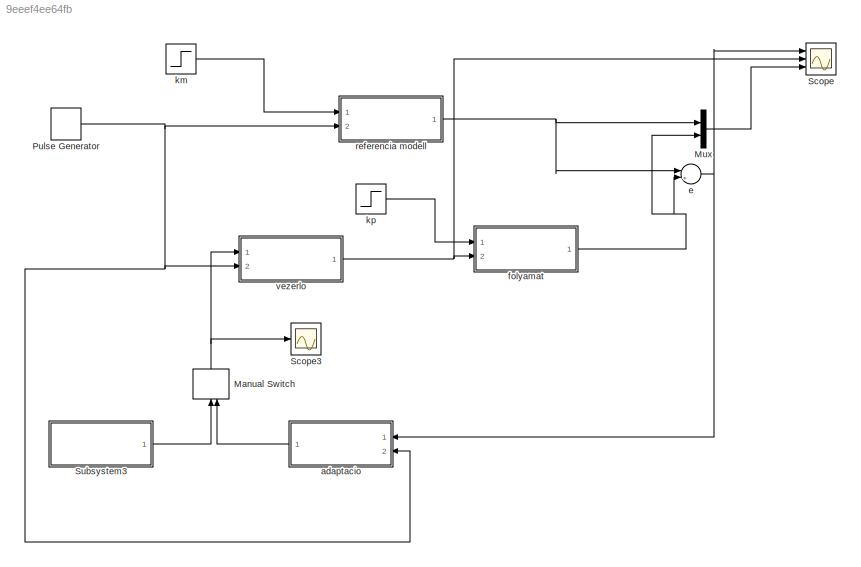
MODEL slx_9eeef4ee64fb
KIND model
CONFIG AbsTol = auto
CONFIG EnableMultiTasking = off
CONFIG FixedStep = auto
CONFIG MaxStep = auto
CONFIG MinStep = auto
CONFIG RelTol = 1e-3
CONFIG SampleTimeConstraint = Unconstrained
CONFIG SolverName = VariableStepAuto
CONFIG StartTime = 0.0
CONFIG StopTime = 20.0
BLOCK [ManualSwitch] Manual Switch
  CurrentSetting = 0
  NameLocation = right
BLOCK [Mux] Mux
  DisplayOption = bar
  Inputs = 2
  Ports = [2, 1]
BLOCK [DiscretePulseGenerator] Pulse Generator
  Amplitude = 5
  Ports = [0, 1]
  PulseType = Time based
  PulseWidth = 50
BLOCK [Scope] Scope
  Floating = off
  NumInputPorts = 3
  Ports = [3]
  ScopeSpecificationString = Simulink.scopes.TimeScopeBlockCfg('CurrentConfiguration', extmgr.ConfigurationSet(extmgr.Configuration('Core','General UI',true),extmgr.Configuration('Core','Source UI',true),extmgr.Configuration('Sources','WiredSimulink',true),extmgr.Configuration('Visuals','Time Domain',true,'SerializedDisplays',{struct('MinYLimReal','-1.00000','MaxYLimReal','1.00000','YLabelReal','','MinYLimMag','0.00000','MaxY...<+2812ch>
BLOCK [Scope] Scope3
  Floating = off
  NumInputPorts = 1
  Ports = [1]
  ScopeSpecificationString = Simulink.scopes.TimeScopeBlockCfg('CurrentConfiguration', extmgr.ConfigurationSet(extmgr.Configuration('Core','General UI',true),extmgr.Configuration('Core','Source UI',true),extmgr.Configuration('Sources','WiredSimulink',true,'DataLoggingVariableName','ScopeData3'),extmgr.Configuration('Visuals','Time Domain',true,'SerializedDisplays',{struct('MinYLimReal','-1.00000','MaxYLimReal','1.00000','YLab...<+1449ch>
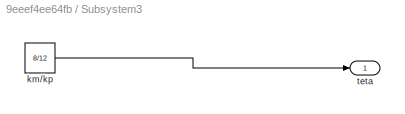
BLOCK [SubSystem] Subsystem3
  Ports = [0, 1]
  RequestExecContextInheritance = off
BLOCK [Constant] Subsystem3/km//kp
  Value = 8/12
BLOCK [Outport] Subsystem3/teta
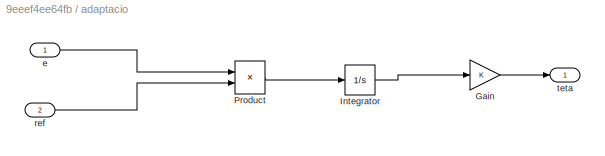
BLOCK [SubSystem] adaptacio
  NameLocation = top
  Ports = [2, 1]
  RequestExecContextInheritance = off
BLOCK [Gain] adaptacio/Gain
BLOCK [Integrator] adaptacio/Integrator
  Ports = [1, 1]
BLOCK [Product] adaptacio/Product
  Ports = [2, 1]
BLOCK [Inport] adaptacio/e
BLOCK [Inport] adaptacio/ref
  Port = 2
BLOCK [Outport] adaptacio/teta
BLOCK [Sum] e
  Inputs = |+-
  Ports = [2, 1]
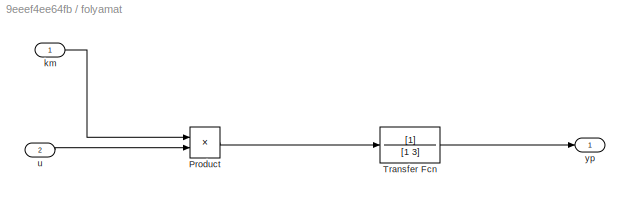
BLOCK [SubSystem] folyamat
  Ports = [2, 1]
  RequestExecContextInheritance = off
BLOCK [Product] folyamat/Product
  Ports = [2, 1]
BLOCK [TransferFcn] folyamat/Transfer Fcn
  Denominator = [1 3]
BLOCK [Inport] folyamat/km
BLOCK [Inport] folyamat/u
  Port = 2
BLOCK [Outport] folyamat/yp
BLOCK [Step] km
  After = 20
  Before = 8
  SampleTime = 0
  Time = 100
BLOCK [Step] kp
  After = 20
  Before = 12
  SampleTime = 0
  Time = 10
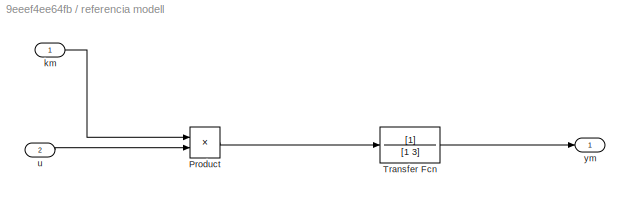
BLOCK [SubSystem] referencia modell
  Ports = [2, 1]
  RequestExecContextInheritance = off
BLOCK [Product] referencia modell/Product
  Ports = [2, 1]
BLOCK [TransferFcn] referencia modell/Transfer Fcn
  Denominator = [1 3]
BLOCK [Inport] referencia modell/km
BLOCK [Inport] referencia modell/u
  Port = 2
BLOCK [Outport] referencia modell/ym
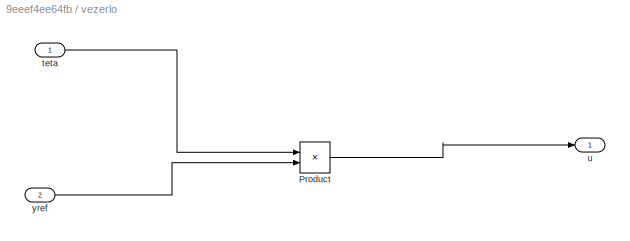
BLOCK [SubSystem] vezerlo
  Ports = [2, 1]
  RequestExecContextInheritance = off
BLOCK [Product] vezerlo/Product
  Ports = [2, 1]
BLOCK [Inport] vezerlo/teta
BLOCK [Outport] vezerlo/u
BLOCK [Inport] vezerlo/yref
  Port = 2
NET Manual Switch:1 -> Scope3:1, vezerlo:1
LINE Mux:1 -> Scope:3
NET Pulse Generator:1 -> adaptacio:2, referencia modell:2, vezerlo:2
LINE Subsystem3/km//kp:1 -> Subsystem3/teta:1
LINE Subsystem3:1 -> Manual Switch:1
LINE adaptacio/Gain:1 -> adaptacio/teta:1
LINE adaptacio/Integrator:1 -> adaptacio/Gain:1
LINE adaptacio/Product:1 -> adaptacio/Integrator:1
LINE adaptacio/e:1 -> adaptacio/Product:1
LINE adaptacio/ref:1 -> adaptacio/Product:2
LINE adaptacio:1 -> Manual Switch:2
NET e:1 -> Scope:1, adaptacio:1
LINE folyamat/Product:1 -> folyamat/Transfer Fcn:1
LINE folyamat/Transfer Fcn:1 -> folyamat/yp:1
LINE folyamat/km:1 -> folyamat/Product:1
LINE folyamat/u:1 -> folyamat/Product:2
NET folyamat:1 -> Mux:2, e:2
LINE km:1 -> referencia modell:1
LINE kp:1 -> folyamat:1
LINE referencia modell/Product:1 -> referencia modell/Transfer Fcn:1
LINE referencia modell/Transfer Fcn:1 -> referencia modell/ym:1
LINE referencia modell/km:1 -> referencia modell/Product:1
LINE referencia modell/u:1 -> referencia modell/Product:2
NET referencia modell:1 -> Mux:1, e:1
LINE vezerlo/Product:1 -> vezerlo/u:1
LINE vezerlo/teta:1 -> vezerlo/Product:1
LINE vezerlo/yref:1 -> vezerlo/Product:2
NET vezerlo:1 -> Scope:2, folyamat:2
note: NET lines group one-source signal fan-out (src -> all destinations, sorted); 1:1 wires keep LINE
